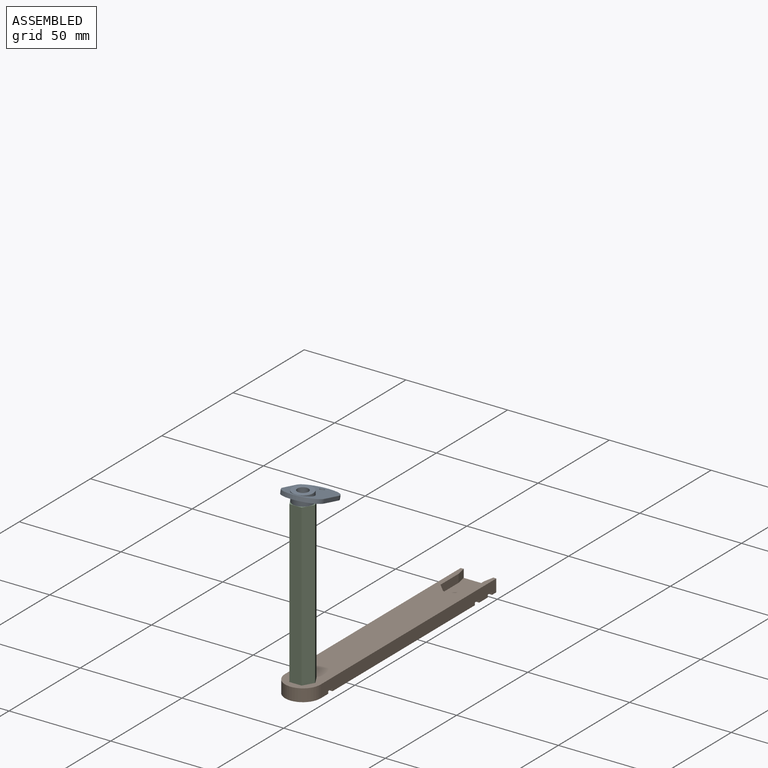
[diagram: assembled view]
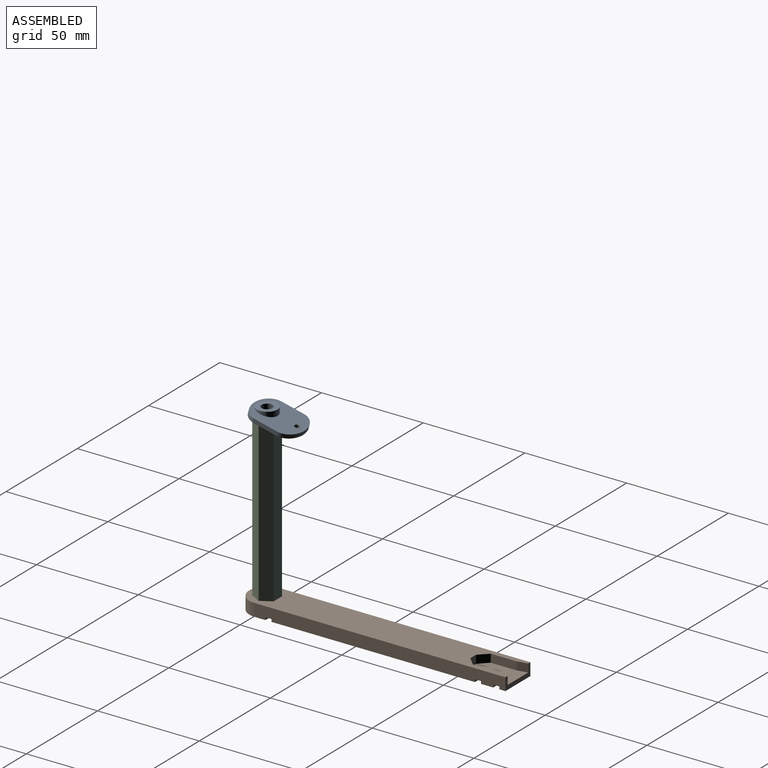
[diagram: assembled view, second angle]
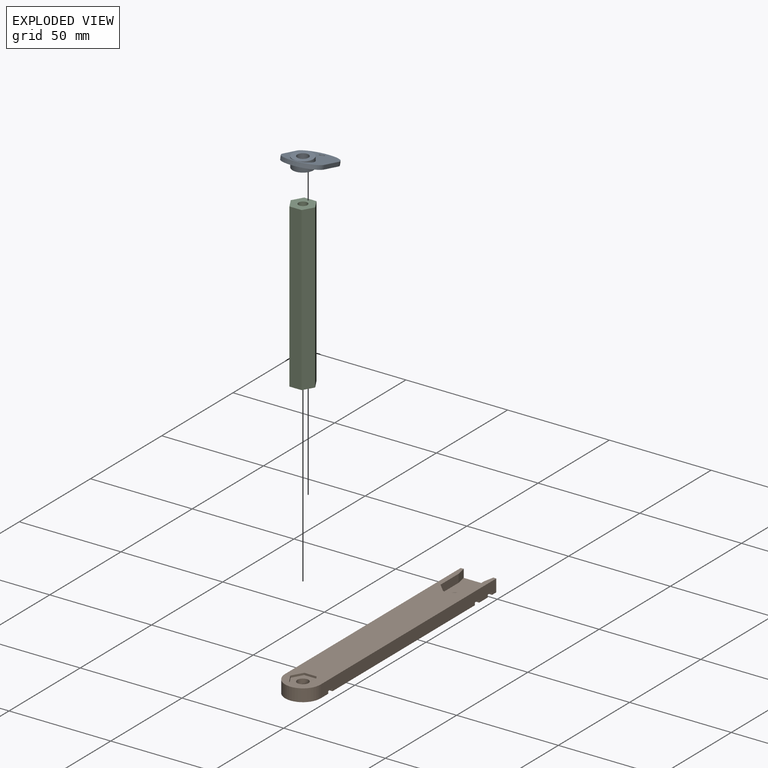
[diagram: exploded view]
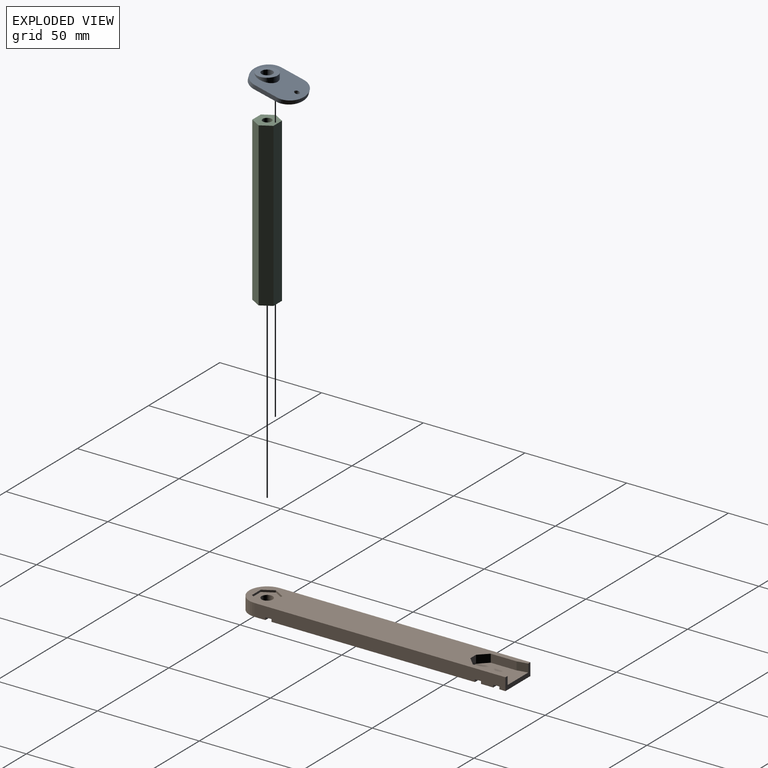
[diagram: exploded view, second angle]
ASSEMBLY  parts=3 mates=2
PART A: 12 faces, bbox 20x24.7x8.4 mm
  f0: cylinder r=5.1mm len=10.2mm, axis (0,0,1), area 46.5mm2, adj f3,f10
  f1: cylinder r=5.1mm len=10.2mm, axis (0,0,1), area 48.1mm2, adj f2,f11
  f2: plane 10.2x10.2mm, normal (0,0,-1), area 58mm2, adj f1,f4
  f3: plane 10.2x10.2mm, normal (0,0,1), area 58mm2, adj f0,f4
  f4: cylinder r=2.75mm len=5.5mm, axis (0,0,-1), area 86.4mm2, adj f2,f3
  f5: extruded ~20x7.27mm, area 53.3mm2, adj f6,f9,f10,f11
  f6: plane 11.14x4.76mm, normal (-1,0,0), area 21.8mm2, adj f5,f7,f10,f11
  f7: extruded ~20x7.27mm, area 53.3mm2, adj f6,f9,f10,f11
  f8: cylinder r=1.25mm len=2.93mm, axis (0,0.26,-0.97), area 15.6mm2, adj f10,f11
  f9: plane 11.14x4.76mm, normal (1,0,0), area 21.8mm2, adj f5,f7,f10,f11
  f10: plane 24.15x20mm, normal (0,-0.26,0.97), area 350.4mm2, adj f0,f5,f6,f7,f8,f9
  f11: plane 24.15x20mm, normal (0,0.26,-0.97), area 350.4mm2, adj f1,f5,f6,f7,f8,f9
PART B: 36 faces, bbox 17.5x132x6.2 mm
  f0: cylinder r=2.75mm len=5.5mm, axis (0,0,1), area 37.1mm2, adj f27,f29
  f1: plane 100x17.5mm, normal (0,0,-1), area 1750mm2, adj f5,f6,f16,f21
  f2: plane 17.5x14mm, normal (0,0,-1), area 133.6mm2, adj f5,f6,f22,f26,f28
  f3: plane 17.5x6mm, normal (0,0,-1), area 105mm2, adj f5,f6,f15,f18
  f4: plane 17.5x3mm, normal (0,0,-1), area 52.5mm2, adj f5,f6,f7,f19
  f5: plane 123.25x6.15mm, normal (1,0,0), area 746.7mm2, adj f1,f2,f3,f4,f7,f8,f15,f16
  f6: plane 123.25x6.15mm, normal (-1,0,0), area 746.7mm2, adj f1,f2,f3,f4,f7,f8,f15,f16
  f7: plane 17.5x6.15mm, normal (0,1,0), area 49.6mm2, adj f4,f5,f6,f8,f14,f24,f25
  f8: plane 132x17.5mm, normal (0,0,1), area 1917.9mm2, adj f5,f6,f7,f9,f10,f11,f12,f13
  f9: plane 12.75x4mm, normal (1,0,0), area 51mm2, adj f8,f13,f14,f25
  f10: plane 12.75x4mm, normal (-1,0,0), area 51mm2, adj f8,f11,f14,f24
  f11: plane 4.25x4.25mm, normal (-0.71,0.71,0), area 24mm2, adj f8,f10,f12,f14
  f12: plane 4x4mm, normal (0,1,0), area 16mm2, adj f8,f11,f13,f14
  f13: plane 4.25x4.25mm, normal (0.71,0.71,0), area 24mm2, adj f8,f9,f12,f14
  f14: plane 22x14.5mm, normal (0,0,1), area 261.9mm2, adj f7,f9,f10,f11,f12,f13,f24,f25
  f15: plane 17.5x1.25mm, normal (0,-1,0), area 21.9mm2, adj f3,f5,f6,f17
  f16: plane 17.5x1.25mm, normal (0,1,0), area 21.9mm2, adj f1,f5,f6,f17
  f17: plane 17.5x3mm, normal (0,0,-1), area 52.5mm2, adj f5,f6,f15,f16
  f18: plane 17.5x1.25mm, normal (0,1,0), area 21.9mm2, adj f3,f5,f6,f20
  f19: plane 17.5x1.25mm, normal (0,-1,0), area 21.9mm2, adj f4,f5,f6,f20
  f20: plane 17.5x3mm, normal (0,0,-1), area 52.5mm2, adj f5,f6,f18,f19
  f21: plane 17.5x1.25mm, normal (0,-1,0), area 21.9mm2, adj f1,f5,f6,f23
  f22: plane 17.5x1.25mm, normal (0,1,0), area 21.9mm2, adj f2,f5,f6,f23
  f23: plane 17.5x3mm, normal (0,0,-1), area 52.5mm2, adj f5,f6,f21,f22
  f24: plane 5x4mm, normal (-0.98,0.2,0), area 20.4mm2, adj f7,f8,f10,f14
  f25: plane 5x4mm, normal (0.98,0.2,0), area 20.4mm2, adj f7,f8,f9,f14
  f26: cylinder r=5mm len=10mm, axis (0,0,1), area 94.2mm2, adj f2,f27
  f27: plane 10x10mm, normal (0,0,-1), area 54.8mm2, adj f0,f26
  f28: cylinder r=8.75mm len=17.5mm, axis (0,0,-1), area 169.1mm2, adj f2,f5,f6,f8
  f29: plane 12.24x10.6mm, normal (0,0,1), area 73.5mm2, adj f0,f30,f31,f32,f33,f34,f35
  f30: plane 5.3x3.06mm, normal (-0.87,-0.5,0), area 6.1mm2, adj f8,f29,f31,f35
  f31: plane 5.3x3.06mm, normal (-0.87,0.5,0), area 6.1mm2, adj f8,f29,f30,f32
  f32: plane 6.12x1mm, normal (0,1,0), area 6.1mm2, adj f8,f29,f31,f33
  f33: plane 5.3x3.06mm, normal (0.87,0.5,0), area 6.1mm2, adj f8,f29,f32,f34
  f34: plane 5.3x3.06mm, normal (0.87,-0.5,0), area 6.1mm2, adj f8,f29,f33,f35
  f35: plane 6.12x1mm, normal (0,-1,0), area 6.1mm2, adj f8,f29,f30,f34
PART C: 12 faces, bbox 12x80x10.4 mm
  f0: plane 80x6mm, normal (0,0,1), area 480.4mm2, adj f1,f5,f6,f7
  f1: plane 80x5.2mm, normal (-0.87,0,0.5), area 480.4mm2, adj f0,f2,f6,f7
  f2: plane 80x5.2mm, normal (-0.87,0,-0.5), area 480.4mm2, adj f1,f3,f6,f7
  f3: plane 80x6mm, normal (0,0,-1), area 480.4mm2, adj f2,f4,f6,f7
  f4: plane 80x5.2mm, normal (0.87,0,-0.5), area 480.4mm2, adj f3,f5,f6,f7
  f5: plane 80x5.2mm, normal (0.87,0,0.5), area 480.4mm2, adj f0,f4,f6,f7
  f6: plane 12.01x10.4mm, normal (0,1,0), area 78.5mm2, adj f0,f1,f2,f3,f4,f5,f10
  f7: plane 12.01x10.4mm, normal (0,-1,0), area 78.5mm2, adj f0,f1,f2,f3,f4,f5,f8
  f8: cylinder r=2.2mm len=25mm, axis (0,-1,0), area 345.6mm2, adj f7,f9
  f9: plane 4.4x4.4mm, normal (0,-1,0), area 15.2mm2, adj f8
  f10: cylinder r=2.2mm len=5mm, axis (0,-1,0), area 69.1mm2, adj f6,f11
  f11: plane 4.4x4.4mm, normal (0,1,0), area 15.2mm2, adj f10
PLACE A rot(axis=(0,0,-1),177.5deg) t=(-35.44,6.74,93.03)mm
PLACE B t=(0.08,130.14,12.53)mm
PLACE C rot(axis=(1,0,0),90deg) t=(-25.72,17.24,118.58)mm
MATE fastened C.f10 <-> B.f26  axis (0,0,-1) through (0.08,13.41,10.06)mm
MATE revolute A.f4 <-> C.f10  axis (0,0,-1) through (0.08,13.41,90.06)mm
